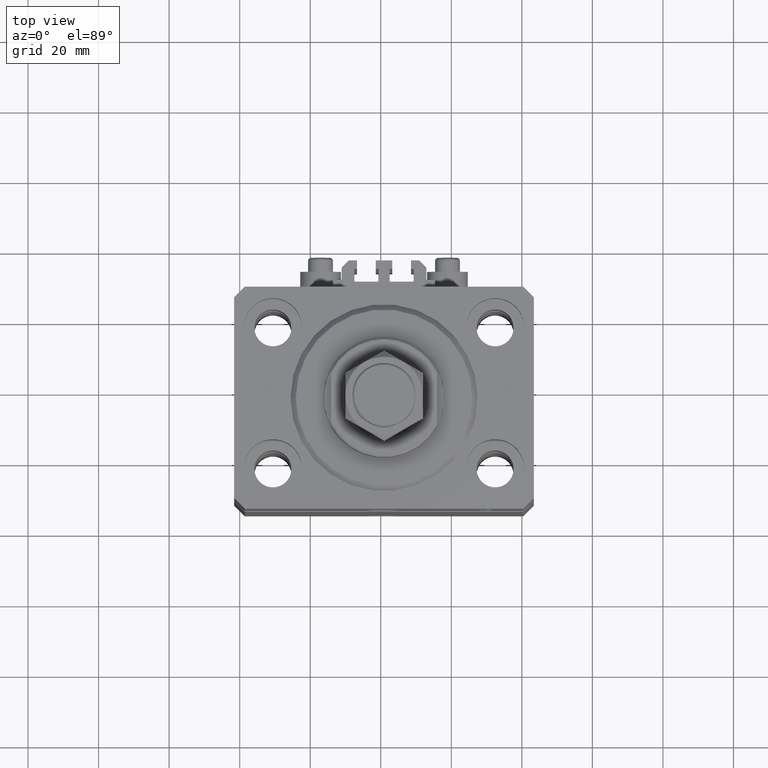
[diagram: clean part render]
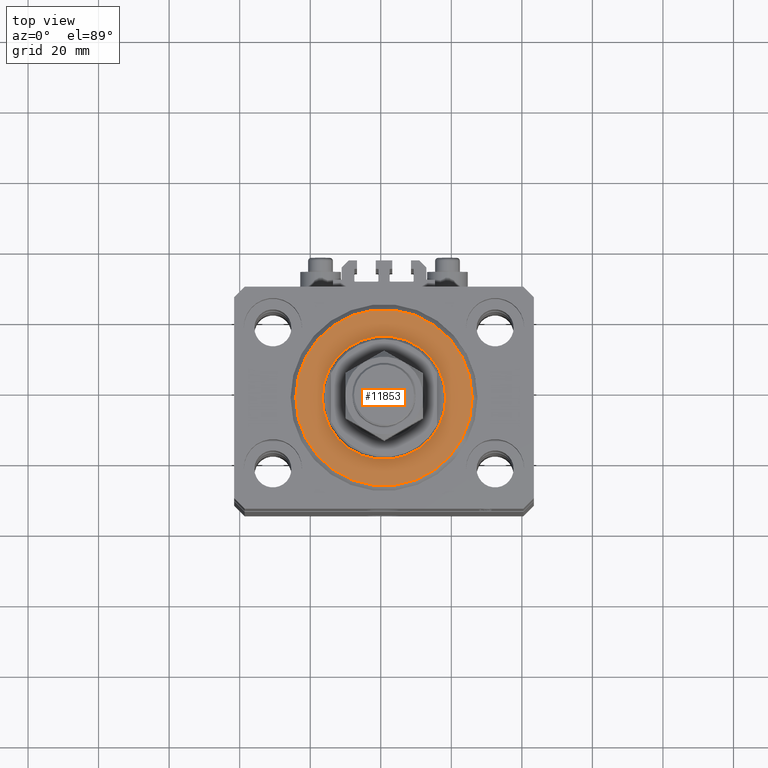
[diagram: same view with one face highlighted and labeled with its STEP entity id]
A machine part, top view. The second image highlights one B-rep face of the part: STEP entity #11853.
In plain terms, the highlighted planar face has unit normal (0, 0, -1).
Its self-contained STEP definition (entity closure, byte-faithful):
#1163 = PLANE ( 'NONE',  #36255 ) ;
#1409 = AXIS2_PLACEMENT_3D ( 'NONE', #37193, #11784, #45911 ) ;
#1924 = CARTESIAN_POINT ( 'NONE',  ( 0.000000000000000000, 0.000000000000000000, 0.000000000000000000 ) ) ;
#5161 = DIRECTION ( 'NONE',  ( 1.000000000000000000, 0.000000000000000000, 0.000000000000000000 ) ) ;
#5797 = ORIENTED_EDGE ( 'NONE', *, *, #15111, .T. ) ;
#7183 = VERTEX_POINT ( 'NONE', #31241 ) ;
#7301 = ORIENTED_EDGE ( 'NONE', *, *, #45636, .T. ) ;
#7367 = VERTEX_POINT ( 'NONE', #31736 ) ;
#7450 = ORIENTED_EDGE ( 'NONE', *, *, #16554, .T. ) ;
#8545 = CIRCLE ( 'NONE', #19660, 17.50000000000000000 ) ;
#8797 = CARTESIAN_POINT ( 'NONE',  ( 17.50000000000000000, 0.000000000000000000, 2.168404344971008868E-16 ) ) ;
#11784 = DIRECTION ( 'NONE',  ( -0.000000000000000000, -0.000000000000000000, -1.000000000000000000 ) ) ;
#11853 = ADVANCED_FACE ( 'NONE', ( #16374, #46763 ), #1163, .F. ) ;
#12639 = DIRECTION ( 'NONE',  ( 0.000000000000000000, 0.000000000000000000, 1.000000000000000000 ) ) ;
#14459 = DIRECTION ( 'NONE',  ( 1.000000000000000000, 0.000000000000000000, 0.000000000000000000 ) ) ;
#15111 = EDGE_CURVE ( 'NONE', #7367, #46835, #8545, .T. ) ;
#15588 = DIRECTION ( 'NONE',  ( 0.000000000000000000, 0.000000000000000000, 1.000000000000000000 ) ) ;
#16374 = FACE_BOUND ( 'NONE', #19452, .T. ) ;
#16554 = EDGE_CURVE ( 'NONE', #18365, #7183, #22906, .T. ) ;
#17132 = DIRECTION ( 'NONE',  ( 0.000000000000000000, 0.000000000000000000, 1.000000000000000000 ) ) ;
#17673 = EDGE_LOOP ( 'NONE', ( #7450, #30558 ) ) ;
#18365 = VERTEX_POINT ( 'NONE', #45506 ) ;
#18933 = CARTESIAN_POINT ( 'NONE',  ( 0.000000000000000000, 0.000000000000000000, 0.000000000000000000 ) ) ;
#19452 = EDGE_LOOP ( 'NONE', ( #7301, #5797 ) ) ;
#19660 = AXIS2_PLACEMENT_3D ( 'NONE', #1924, #17132, #5161 ) ;
#22906 = CIRCLE ( 'NONE', #1409, 24.99999999999995026 ) ;
#23054 = CARTESIAN_POINT ( 'NONE',  ( 0.000000000000000000, 0.000000000000000000, 0.000000000000000000 ) ) ;
#23697 = AXIS2_PLACEMENT_3D ( 'NONE', #23054, #15588, #45974 ) ;
#24330 = DIRECTION ( 'NONE',  ( 1.000000000000000000, 0.000000000000000000, -0.000000000000000000 ) ) ;
#30180 = CIRCLE ( 'NONE', #32540, 24.99999999999995026 ) ;
#30558 = ORIENTED_EDGE ( 'NONE', *, *, #48549, .T. ) ;
#31241 = CARTESIAN_POINT ( 'NONE',  ( -24.99999999999995026, 3.153465507804431248E-15, 0.000000000000000000 ) ) ;
#31736 = CARTESIAN_POINT ( 'NONE',  ( -17.50000000000000000, 2.143131898507868643E-15, 2.168404344971008868E-16 ) ) ;
#32540 = AXIS2_PLACEMENT_3D ( 'NONE', #18933, #33366, #14459 ) ;
#33366 = DIRECTION ( 'NONE',  ( -0.000000000000000000, -0.000000000000000000, -1.000000000000000000 ) ) ;
#36255 = AXIS2_PLACEMENT_3D ( 'NONE', #47756, #12639, #24330 ) ;
#37193 = CARTESIAN_POINT ( 'NONE',  ( 0.000000000000000000, 0.000000000000000000, 0.000000000000000000 ) ) ;
#45191 = CIRCLE ( 'NONE', #23697, 17.50000000000000000 ) ;
#45506 = CARTESIAN_POINT ( 'NONE',  ( 24.99999999999995026, 0.000000000000000000, 0.000000000000000000 ) ) ;
#45636 = EDGE_CURVE ( 'NONE', #46835, #7367, #45191, .T. ) ;
#45911 = DIRECTION ( 'NONE',  ( 1.000000000000000000, 0.000000000000000000, 0.000000000000000000 ) ) ;
#45974 = DIRECTION ( 'NONE',  ( 1.000000000000000000, 0.000000000000000000, 0.000000000000000000 ) ) ;
#46763 = FACE_OUTER_BOUND ( 'NONE', #17673, .T. ) ;
#46835 = VERTEX_POINT ( 'NONE', #8797 ) ;
#47756 = CARTESIAN_POINT ( 'NONE',  ( 0.000000000000000000, 0.000000000000000000, 0.000000000000000000 ) ) ;
#48549 = EDGE_CURVE ( 'NONE', #7183, #18365, #30180, .T. ) ;